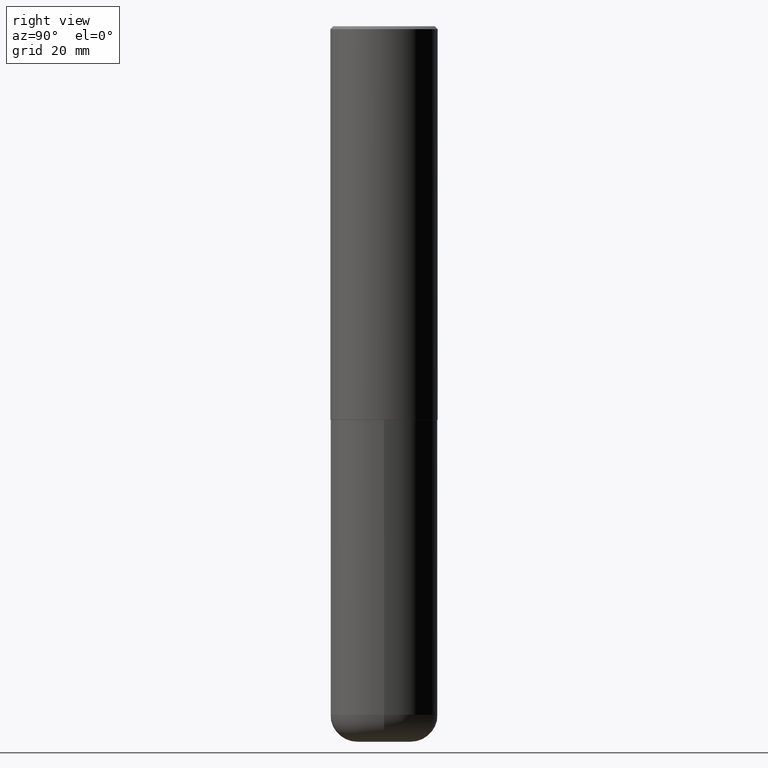
[diagram: clean part render]
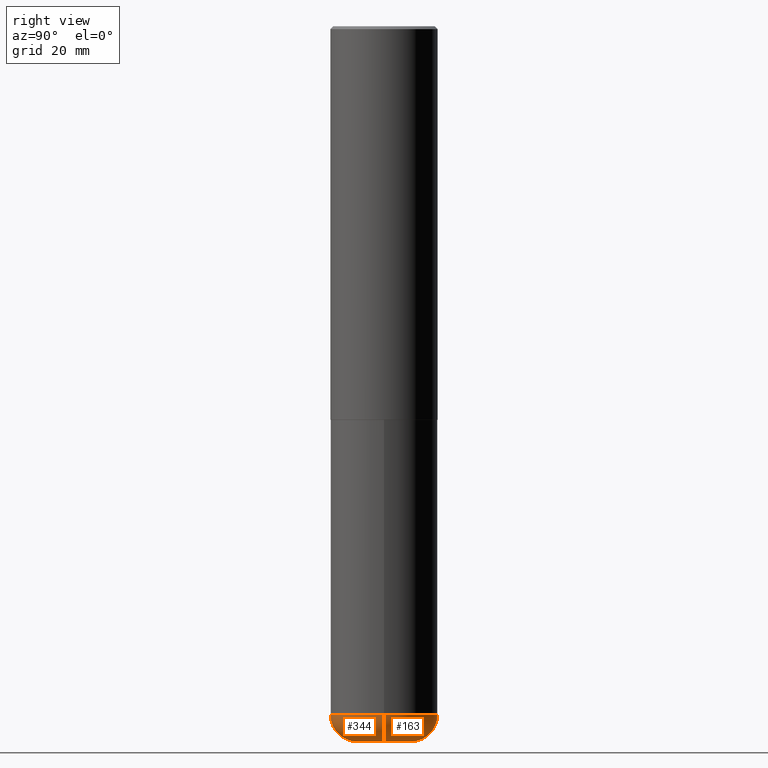
[diagram: same view with one multi-face feature highlighted, each face labeled with its STEP entity id]
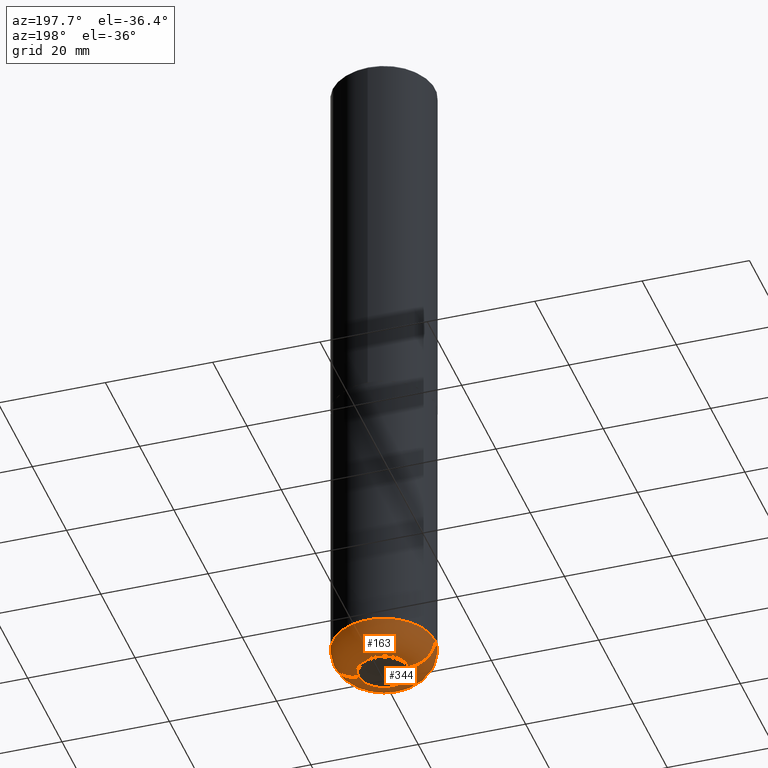
[diagram: same view with one multi-face feature highlighted, each face labeled with its STEP entity id]
A machine part, right view. The highlighted faces form ONE feature: a constant-radius fillet chain: 2 tangent blend faces with common blend radius 4.826 mm. The faces share edges in the B-rep.
A second angle (auxiliary view) of the same feature is appended — it is thin or edge-on in the first view.
Their STEP definitions:
[1] entity #344 (Torus):
#5 = CIRCLE ( 'NONE', #166, 0.1899999999999999190 ) ;
#12 = DIRECTION ( 'NONE',  ( -6.982962677686266711E-15, -1.000000000000000000, 3.491481338843145583E-15 ) ) ;
#13 = CARTESIAN_POINT ( 'NONE',  ( 1.176270495775050811E-28, -1.679402523983553013E-14, -4.810000000000000497 ) ) ;
#14 = ORIENTED_EDGE ( 'NONE', *, *, #227, .F. ) ;
#15 = AXIS2_PLACEMENT_3D ( 'NONE', #13, #232, #44 ) ;
#31 = CIRCLE ( 'NONE', #81, 0.1850000000000000810 ) ;
#42 = AXIS2_PLACEMENT_3D ( 'NONE', #283, #119, #358 ) ;
#44 = DIRECTION ( 'NONE',  ( 1.000000000000000000, -6.982962677686269077E-15, 4.883557194083113462E-29 ) ) ;
#47 = CARTESIAN_POINT ( 'NONE',  ( 0.3750000000000000555, -1.941263624396788015E-14, -4.810000000000000497 ) ) ;
#49 = DIRECTION ( 'NONE',  ( 1.000000000000000000, -6.982962677686272233E-15, 0.000000000000000000 ) ) ;
#64 = EDGE_CURVE ( 'NONE', #378, #393, #31, .T. ) ;
#73 = VERTEX_POINT ( 'NONE', #107 ) ;
#81 = AXIS2_PLACEMENT_3D ( 'NONE', #338, #242, #49 ) ;
#84 = DIRECTION ( 'NONE',  ( -2.445468806185136597E-29, 3.491481338843145583E-15, 1.000000000000000000 ) ) ;
#91 = CIRCLE ( 'NONE', #149, 0.3750000000000001110 ) ;
#98 = EDGE_CURVE ( 'NONE', #393, #195, #5, .T. ) ;
#105 = DIRECTION ( 'NONE',  ( 1.000000000000000000, -6.982962677686264344E-15, 0.000000000000000000 ) ) ;
#107 = CARTESIAN_POINT ( 'NONE',  ( -0.3750000000000000555, -1.412948998073515443E-14, -4.810000000000000497 ) ) ;
#119 = DIRECTION ( 'NONE',  ( 7.105427357601001859E-15, 1.000000000000000000, -3.491481338843145583E-15 ) ) ;
#132 = CARTESIAN_POINT ( 'NONE',  ( 1.176270495775050811E-28, -1.679402523983553013E-14, -4.810000000000000497 ) ) ;
#139 = CIRCLE ( 'NONE', #42, 0.1899999999999999190 ) ;
#146 = CARTESIAN_POINT ( 'NONE',  ( 0.1850000000000000533, -1.808587333520749010E-14, -4.810000000000000497 ) ) ;
#149 = AXIS2_PLACEMENT_3D ( 'NONE', #132, #84, #407 ) ;
#160 = EDGE_LOOP ( 'NONE', ( #14, #405, #226, #394 ) ) ;
#166 = AXIS2_PLACEMENT_3D ( 'NONE', #146, #12, #105 ) ;
#195 = VERTEX_POINT ( 'NONE', #47 ) ;
#200 = CARTESIAN_POINT ( 'NONE',  ( -0.1850000000000000810, -1.513619630689734772E-14, -5.000000000000000000 ) ) ;
#226 = ORIENTED_EDGE ( 'NONE', *, *, #98, .T. ) ;
#227 = EDGE_CURVE ( 'NONE', #378, #73, #139, .T. ) ;
#232 = DIRECTION ( 'NONE',  ( -2.445468806185136597E-29, 3.491481338843145583E-15, 1.000000000000000000 ) ) ;
#242 = DIRECTION ( 'NONE',  ( -2.445468806185136597E-29, 3.491481338843145583E-15, 1.000000000000000000 ) ) ;
#258 = TOROIDAL_SURFACE ( 'NONE', #15, 0.1850000000000000533, 0.1899999999999999467 ) ;
#283 = CARTESIAN_POINT ( 'NONE',  ( -0.1850000000000000533, -1.547952117867934441E-14, -4.810000000000000497 ) ) ;
#324 = EDGE_CURVE ( 'NONE', #73, #195, #91, .T. ) ;
#337 = FACE_OUTER_BOUND ( 'NONE', #160, .T. ) ;
#338 = CARTESIAN_POINT ( 'NONE',  ( 1.222734403092568523E-28, -1.745740669421572989E-14, -5.000000000000000000 ) ) ;
#344 = ADVANCED_FACE ( 'NONE', ( #337 ), #258, .T. ) ;
#358 = DIRECTION ( 'NONE',  ( -1.000000000000000000, 7.105427357601001070E-15, 0.000000000000000000 ) ) ;
#378 = VERTEX_POINT ( 'NONE', #200 ) ;
#383 = CARTESIAN_POINT ( 'NONE',  ( 0.1850000000000000810, -1.874925478958768986E-14, -5.000000000000000000 ) ) ;
#393 = VERTEX_POINT ( 'NONE', #383 ) ;
#394 = ORIENTED_EDGE ( 'NONE', *, *, #324, .F. ) ;
#405 = ORIENTED_EDGE ( 'NONE', *, *, #64, .T. ) ;
#407 = DIRECTION ( 'NONE',  ( 1.000000000000000000, -6.982962677686265922E-15, 0.000000000000000000 ) ) ;
[2] entity #163 (Torus):
#5 = CIRCLE ( 'NONE', #166, 0.1899999999999999190 ) ;
#6 = CIRCLE ( 'NONE', #240, 0.1850000000000000810 ) ;
#12 = DIRECTION ( 'NONE',  ( -6.982962677686266711E-15, -1.000000000000000000, 3.491481338843145583E-15 ) ) ;
#42 = AXIS2_PLACEMENT_3D ( 'NONE', #283, #119, #358 ) ;
#47 = CARTESIAN_POINT ( 'NONE',  ( 0.3750000000000000555, -1.941263624396788015E-14, -4.810000000000000497 ) ) ;
#50 = CARTESIAN_POINT ( 'NONE',  ( 1.222734403092568523E-28, -1.745740669421572989E-14, -5.000000000000000000 ) ) ;
#73 = VERTEX_POINT ( 'NONE', #107 ) ;
#79 = DIRECTION ( 'NONE',  ( -2.445468806185136597E-29, 3.491481338843145583E-15, 1.000000000000000000 ) ) ;
#83 = CARTESIAN_POINT ( 'NONE',  ( 1.176270495775050811E-28, -1.679402523983553013E-14, -4.810000000000000497 ) ) ;
#98 = EDGE_CURVE ( 'NONE', #393, #195, #5, .T. ) ;
#103 = CIRCLE ( 'NONE', #298, 0.3750000000000001110 ) ;
#105 = DIRECTION ( 'NONE',  ( 1.000000000000000000, -6.982962677686264344E-15, 0.000000000000000000 ) ) ;
#107 = CARTESIAN_POINT ( 'NONE',  ( -0.3750000000000000555, -1.412948998073515443E-14, -4.810000000000000497 ) ) ;
#110 = FACE_OUTER_BOUND ( 'NONE', #192, .T. ) ;
#118 = EDGE_CURVE ( 'NONE', #195, #73, #103, .T. ) ;
#119 = DIRECTION ( 'NONE',  ( 7.105427357601001859E-15, 1.000000000000000000, -3.491481338843145583E-15 ) ) ;
#139 = CIRCLE ( 'NONE', #42, 0.1899999999999999190 ) ;
#146 = CARTESIAN_POINT ( 'NONE',  ( 0.1850000000000000533, -1.808587333520749010E-14, -4.810000000000000497 ) ) ;
#151 = DIRECTION ( 'NONE',  ( -2.445468806185136597E-29, 3.491481338843145583E-15, 1.000000000000000000 ) ) ;
#163 = ADVANCED_FACE ( 'NONE', ( #110 ), #327, .T. ) ;
#166 = AXIS2_PLACEMENT_3D ( 'NONE', #146, #12, #105 ) ;
#168 = ORIENTED_EDGE ( 'NONE', *, *, #118, .F. ) ;
#192 = EDGE_LOOP ( 'NONE', ( #299, #398, #168, #408 ) ) ;
#195 = VERTEX_POINT ( 'NONE', #47 ) ;
#200 = CARTESIAN_POINT ( 'NONE',  ( -0.1850000000000000810, -1.513619630689734772E-14, -5.000000000000000000 ) ) ;
#211 = CARTESIAN_POINT ( 'NONE',  ( 1.176270495775050811E-28, -1.679402523983553013E-14, -4.810000000000000497 ) ) ;
#227 = EDGE_CURVE ( 'NONE', #378, #73, #139, .T. ) ;
#240 = AXIS2_PLACEMENT_3D ( 'NONE', #50, #275, #243 ) ;
#243 = DIRECTION ( 'NONE',  ( 1.000000000000000000, -6.982962677686272233E-15, 0.000000000000000000 ) ) ;
#266 = AXIS2_PLACEMENT_3D ( 'NONE', #83, #151, #314 ) ;
#275 = DIRECTION ( 'NONE',  ( -2.445468806185136597E-29, 3.491481338843145583E-15, 1.000000000000000000 ) ) ;
#283 = CARTESIAN_POINT ( 'NONE',  ( -0.1850000000000000533, -1.547952117867934441E-14, -4.810000000000000497 ) ) ;
#298 = AXIS2_PLACEMENT_3D ( 'NONE', #211, #79, #340 ) ;
#299 = ORIENTED_EDGE ( 'NONE', *, *, #390, .T. ) ;
#314 = DIRECTION ( 'NONE',  ( 1.000000000000000000, -6.982962677686269077E-15, 4.883557194083113462E-29 ) ) ;
#327 = TOROIDAL_SURFACE ( 'NONE', #266, 0.1850000000000000533, 0.1899999999999999467 ) ;
#340 = DIRECTION ( 'NONE',  ( 1.000000000000000000, -6.982962677686265922E-15, 0.000000000000000000 ) ) ;
#358 = DIRECTION ( 'NONE',  ( -1.000000000000000000, 7.105427357601001070E-15, 0.000000000000000000 ) ) ;
#378 = VERTEX_POINT ( 'NONE', #200 ) ;
#383 = CARTESIAN_POINT ( 'NONE',  ( 0.1850000000000000810, -1.874925478958768986E-14, -5.000000000000000000 ) ) ;
#390 = EDGE_CURVE ( 'NONE', #393, #378, #6, .T. ) ;
#393 = VERTEX_POINT ( 'NONE', #383 ) ;
#398 = ORIENTED_EDGE ( 'NONE', *, *, #227, .T. ) ;
#408 = ORIENTED_EDGE ( 'NONE', *, *, #98, .F. ) ;